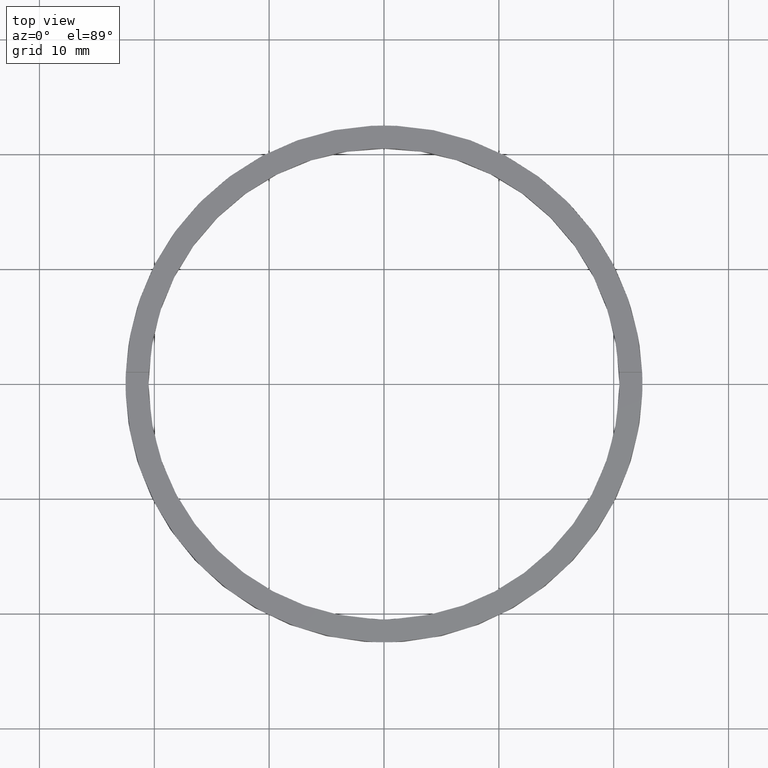
[diagram: clean part render]
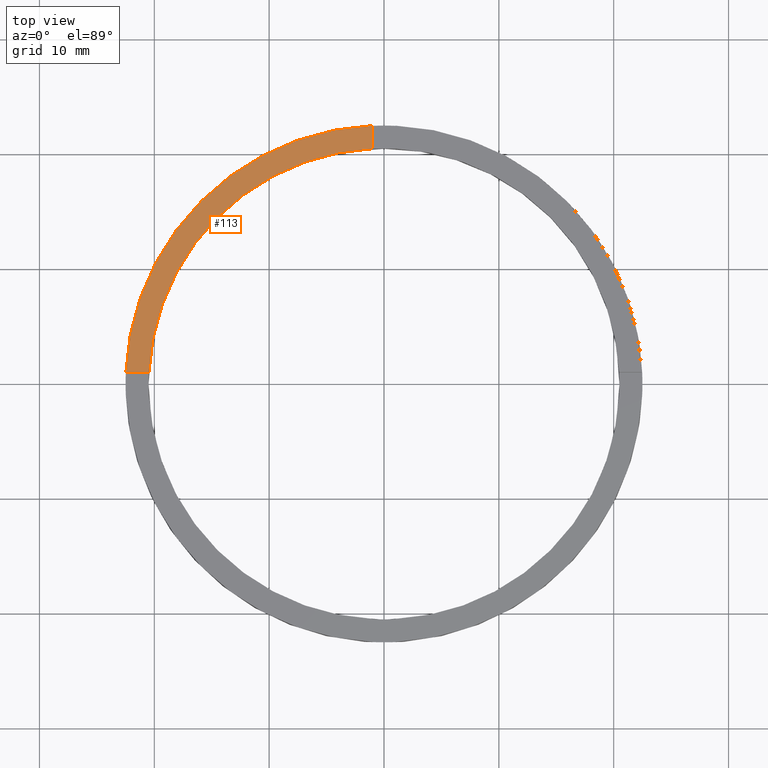
[diagram: same view with one face highlighted and labeled with its STEP entity id]
A machine part, top view. The second image highlights one B-rep face of the part: STEP entity #113.
In plain terms, the highlighted planar face has unit normal (0, 0, 1).
Its self-contained STEP definition (entity closure, byte-faithful):
#3 = DIRECTION ( 'NONE',  ( 1.000000000000000000, 0.000000000000000000, -0.000000000000000000 ) ) ;
#6 = CIRCLE ( 'NONE', #395, 20.50000000000000000 ) ;
#52 = VERTEX_POINT ( 'NONE', #613 ) ;
#61 = CARTESIAN_POINT ( 'NONE',  ( 0.000000000000000000, 0.000000000000000000, 2.500000000000000000 ) ) ;
#65 = CIRCLE ( 'NONE', #380, 22.50000000000000355 ) ;
#69 = VECTOR ( 'NONE', #479, 1000.000000000000000 ) ;
#73 = LINE ( 'NONE', #290, #69 ) ;
#74 = LINE ( 'NONE', #345, #334 ) ;
#76 = CARTESIAN_POINT ( 'NONE',  ( 0.000000000000000000, 0.000000000000000000, 2.500000000000000000 ) ) ;
#83 = ORIENTED_EDGE ( 'NONE', *, *, #216, .F. ) ;
#113 = ADVANCED_FACE ( 'NONE', ( #599 ), #650, .T. ) ;
#119 = DIRECTION ( 'NONE',  ( 1.000000000000000000, 0.000000000000000000, 0.000000000000000000 ) ) ;
#128 = AXIS2_PLACEMENT_3D ( 'NONE', #326, #248, #3 ) ;
#142 = EDGE_CURVE ( 'NONE', #52, #242, #65, .T. ) ;
#182 = CARTESIAN_POINT ( 'NONE',  ( -22.47776679298902636, 0.9999999999999746869, 2.500000000000000000 ) ) ;
#193 = EDGE_CURVE ( 'NONE', #52, #559, #73, .T. ) ;
#216 = EDGE_CURVE ( 'NONE', #639, #242, #74, .T. ) ;
#223 = CARTESIAN_POINT ( 'NONE',  ( -20.47559522944327171, 0.9999999999999751310, 2.500000000000000000 ) ) ;
#242 = VERTEX_POINT ( 'NONE', #182 ) ;
#248 = DIRECTION ( 'NONE',  ( 0.000000000000000000, 0.000000000000000000, 1.000000000000000000 ) ) ;
#290 = CARTESIAN_POINT ( 'NONE',  ( -1.000000000000025757, 12.50000000000000178, 2.500000000000000000 ) ) ;
#326 = CARTESIAN_POINT ( 'NONE',  ( 0.000000000000000000, 0.000000000000000000, 2.500000000000000000 ) ) ;
#334 = VECTOR ( 'NONE', #406, 1000.000000000000000 ) ;
#335 = ORIENTED_EDGE ( 'NONE', *, *, #193, .F. ) ;
#345 = CARTESIAN_POINT ( 'NONE',  ( -12.50000000000018829, 0.9999999999999763522, 2.500000000000000000 ) ) ;
#361 = DIRECTION ( 'NONE',  ( 0.000000000000000000, 0.000000000000000000, 1.000000000000000000 ) ) ;
#380 = AXIS2_PLACEMENT_3D ( 'NONE', #76, #675, #552 ) ;
#395 = AXIS2_PLACEMENT_3D ( 'NONE', #61, #361, #119 ) ;
#406 = DIRECTION ( 'NONE',  ( -1.000000000000000000, -1.734723475976806848E-16, 0.000000000000000000 ) ) ;
#438 = ORIENTED_EDGE ( 'NONE', *, *, #142, .T. ) ;
#479 = DIRECTION ( 'NONE',  ( -0.000000000000000000, -1.000000000000000000, -0.000000000000000000 ) ) ;
#552 = DIRECTION ( 'NONE',  ( 1.000000000000000000, 0.000000000000000000, 0.000000000000000000 ) ) ;
#555 = EDGE_LOOP ( 'NONE', ( #335, #438, #83, #701 ) ) ;
#559 = VERTEX_POINT ( 'NONE', #777 ) ;
#599 = FACE_OUTER_BOUND ( 'NONE', #555, .T. ) ;
#613 = CARTESIAN_POINT ( 'NONE',  ( -1.000000000000025313, 22.47776679298902280, 2.500000000000000000 ) ) ;
#639 = VERTEX_POINT ( 'NONE', #223 ) ;
#650 = PLANE ( 'NONE',  #128 ) ;
#675 = DIRECTION ( 'NONE',  ( 0.000000000000000000, 0.000000000000000000, 1.000000000000000000 ) ) ;
#701 = ORIENTED_EDGE ( 'NONE', *, *, #754, .F. ) ;
#754 = EDGE_CURVE ( 'NONE', #559, #639, #6, .T. ) ;
#777 = CARTESIAN_POINT ( 'NONE',  ( -1.000000000000025313, 20.47559522944326460, 2.500000000000000000 ) ) ;